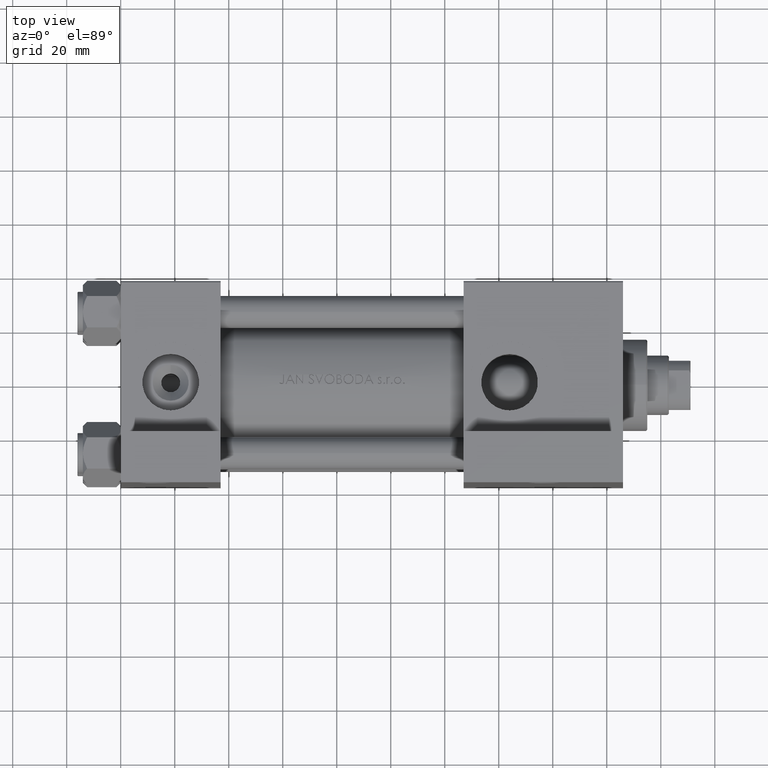
[diagram: clean part render]
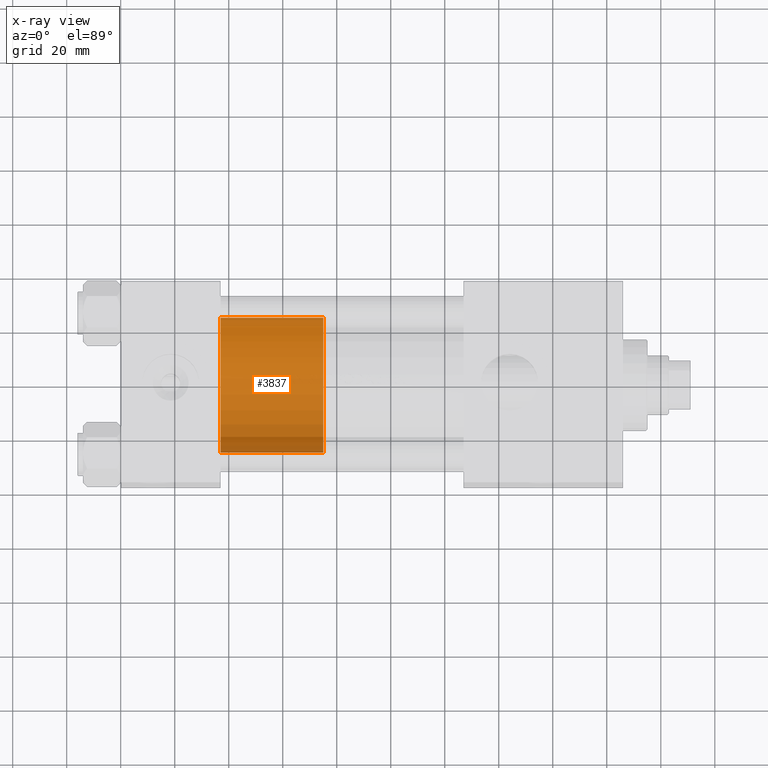
[diagram: x-ray — body ghosted, one internal face saturated and labeled with its STEP entity id]
A machine part, top view, then the same camera in x-ray: the body is ghosted and one INTERNAL B-rep face — a face not visible from any outside direction — is saturated and labeled: STEP entity #3837.
In plain terms, the highlighted cylindrical surface (partial cylindrical patch) has radius 25 mm, axis along (-1, 0, 0).
Its self-contained STEP definition (entity closure, byte-faithful):
#1680 = VERTEX_POINT ( 'NONE', #7962 ) ;
#3837 = ADVANCED_FACE ( 'NONE', ( #47725 ), #13623, .T. ) ;
#5184 = EDGE_CURVE ( 'NONE', #9299, #16598, #16039, .T. ) ;
#5942 = LINE ( 'NONE', #48010, #8412 ) ;
#7962 = CARTESIAN_POINT ( 'NONE',  ( -25.00000000000000000, 0.000000000000000000, 38.00000000000000000 ) ) ;
#8208 = CARTESIAN_POINT ( 'NONE',  ( -25.00000000000000000, 0.000000000000000000, 0.000000000000000000 ) ) ;
#8412 = VECTOR ( 'NONE', #21596, 1000.000000000000000 ) ;
#9299 = VERTEX_POINT ( 'NONE', #40296 ) ;
#9874 = CARTESIAN_POINT ( 'NONE',  ( 0.000000000000000000, 0.000000000000000000, 38.00000000000000000 ) ) ;
#10605 = DIRECTION ( 'NONE',  ( -1.000000000000000000, 0.000000000000000000, 0.000000000000000000 ) ) ;
#11036 = CARTESIAN_POINT ( 'NONE',  ( 25.00000000000000000, 3.061616997868383043E-15, 0.000000000000000000 ) ) ;
#13623 = CYLINDRICAL_SURFACE ( 'NONE', #36081, 25.00000000000000000 ) ;
#15560 = CARTESIAN_POINT ( 'NONE',  ( 25.00000000000000000, 3.061616997868383043E-15, 38.00000000000000000 ) ) ;
#16039 = LINE ( 'NONE', #15560, #20948 ) ;
#16059 = DIRECTION ( 'NONE',  ( 1.000000000000000000, 0.000000000000000000, 0.000000000000000000 ) ) ;
#16598 = VERTEX_POINT ( 'NONE', #11036 ) ;
#19127 = AXIS2_PLACEMENT_3D ( 'NONE', #30709, #38202, #16059 ) ;
#19769 = DIRECTION ( 'NONE',  ( -0.000000000000000000, -0.000000000000000000, -1.000000000000000000 ) ) ;
#20948 = VECTOR ( 'NONE', #19769, 1000.000000000000000 ) ;
#21248 = ORIENTED_EDGE ( 'NONE', *, *, #5184, .T. ) ;
#21596 = DIRECTION ( 'NONE',  ( -0.000000000000000000, -0.000000000000000000, -1.000000000000000000 ) ) ;
#21708 = ORIENTED_EDGE ( 'NONE', *, *, #48411, .F. ) ;
#23109 = EDGE_CURVE ( 'NONE', #16598, #41221, #38967, .T. ) ;
#25916 = ORIENTED_EDGE ( 'NONE', *, *, #33603, .F. ) ;
#26013 = DIRECTION ( 'NONE',  ( -0.000000000000000000, -0.000000000000000000, -1.000000000000000000 ) ) ;
#30709 = CARTESIAN_POINT ( 'NONE',  ( 0.000000000000000000, 0.000000000000000000, 0.000000000000000000 ) ) ;
#33041 = DIRECTION ( 'NONE',  ( 0.000000000000000000, 0.000000000000000000, 1.000000000000000000 ) ) ;
#33603 = EDGE_CURVE ( 'NONE', #1680, #41221, #5942, .T. ) ;
#34890 = ORIENTED_EDGE ( 'NONE', *, *, #23109, .T. ) ;
#36081 = AXIS2_PLACEMENT_3D ( 'NONE', #9874, #26013, #10605 ) ;
#38202 = DIRECTION ( 'NONE',  ( 0.000000000000000000, 0.000000000000000000, 1.000000000000000000 ) ) ;
#38967 = CIRCLE ( 'NONE', #19127, 25.00000000000000000 ) ;
#40296 = CARTESIAN_POINT ( 'NONE',  ( 25.00000000000000000, 3.061616997868383043E-15, 38.00000000000000000 ) ) ;
#40486 = CIRCLE ( 'NONE', #44484, 25.00000000000000000 ) ;
#40528 = DIRECTION ( 'NONE',  ( 1.000000000000000000, 0.000000000000000000, 0.000000000000000000 ) ) ;
#41221 = VERTEX_POINT ( 'NONE', #8208 ) ;
#44031 = CARTESIAN_POINT ( 'NONE',  ( 0.000000000000000000, 0.000000000000000000, 38.00000000000000000 ) ) ;
#44484 = AXIS2_PLACEMENT_3D ( 'NONE', #44031, #33041, #40528 ) ;
#45266 = EDGE_LOOP ( 'NONE', ( #21708, #21248, #34890, #25916 ) ) ;
#47725 = FACE_OUTER_BOUND ( 'NONE', #45266, .T. ) ;
#48010 = CARTESIAN_POINT ( 'NONE',  ( -25.00000000000000000, 0.000000000000000000, 38.00000000000000000 ) ) ;
#48411 = EDGE_CURVE ( 'NONE', #9299, #1680, #40486, .T. ) ;